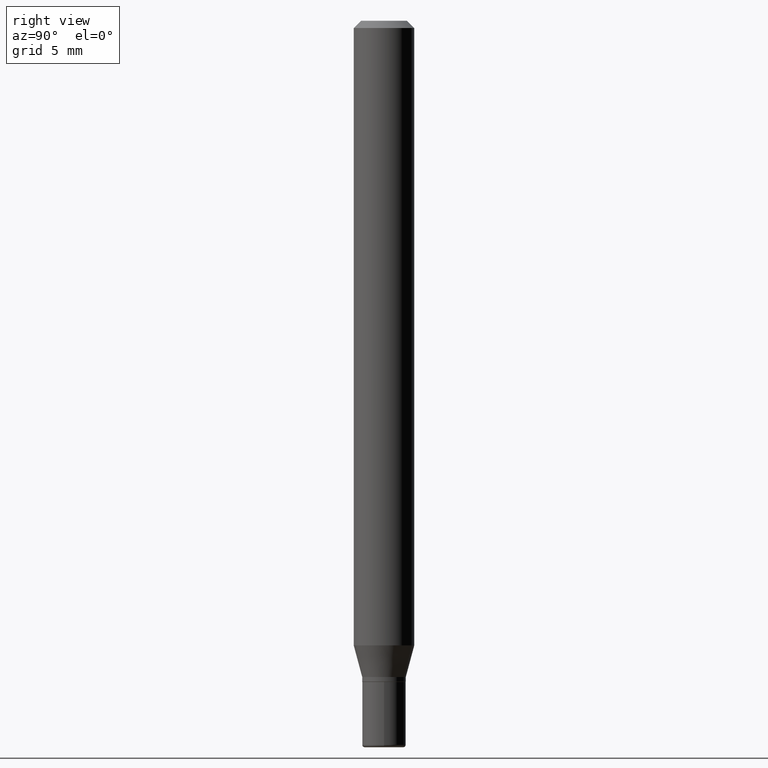
[diagram: clean part render]
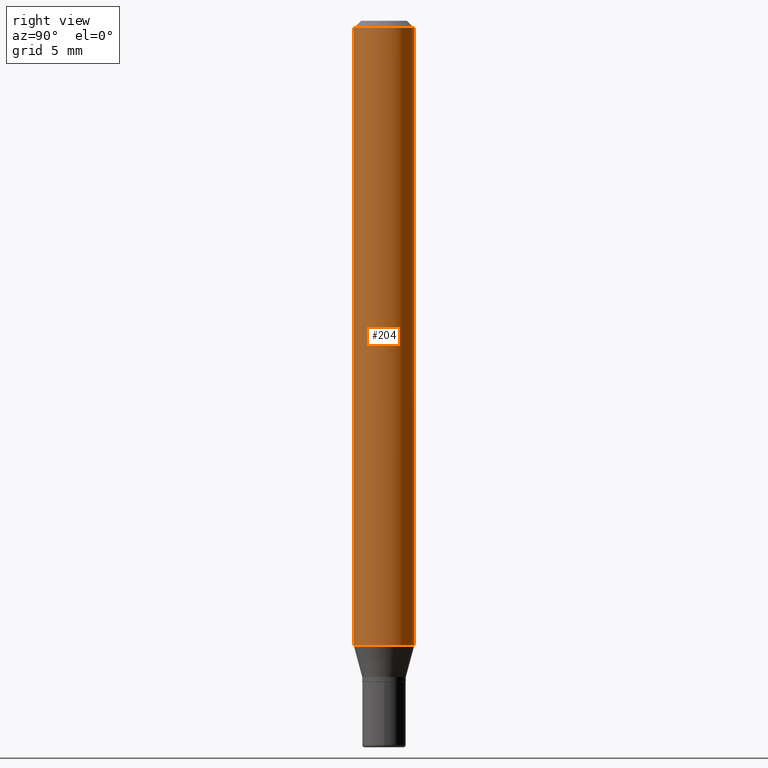
[diagram: same view with one face highlighted and labeled with its STEP entity id]
A machine part, right view. The second image highlights one B-rep face of the part: STEP entity #204.
In plain terms, the highlighted cylindrical surface (edge-blend (fillet) strip) has radius 1.5875 mm, axis along (-0, 0, 1).
Its self-contained STEP definition (entity closure, byte-faithful):
#5 = VECTOR ( 'NONE', #86, 39.37007874015748143 ) ;
#44 = EDGE_CURVE ( 'NONE', #352, #309, #481, .T. ) ;
#82 = AXIS2_PLACEMENT_3D ( 'NONE', #229, #457, #107 ) ;
#86 = DIRECTION ( 'NONE',  ( -2.445401895064721232E-29, 3.491577159375925381E-15, 1.000000000000000000 ) ) ;
#95 = DIRECTION ( 'NONE',  ( -2.445401895064720952E-29, 3.491577159375925381E-15, 1.000000000000000000 ) ) ;
#105 = ORIENTED_EDGE ( 'NONE', *, *, #222, .F. ) ;
#107 = DIRECTION ( 'NONE',  ( -6.982962677686265922E-15, -1.000000000000000000, 4.370956789862821150E-15 ) ) ;
#133 = LINE ( 'NONE', #365, #134 ) ;
#134 = VECTOR ( 'NONE', #288, 39.37007874015748143 ) ;
#142 = DIRECTION ( 'NONE',  ( -2.445401895064720952E-29, 3.491577159375925381E-15, 1.000000000000000000 ) ) ;
#148 = VERTEX_POINT ( 'NONE', #451 ) ;
#150 = EDGE_LOOP ( 'NONE', ( #256, #240, #226, #105 ) ) ;
#204 = ADVANCED_FACE ( 'NONE', ( #213 ), #368, .T. ) ;
#213 = FACE_OUTER_BOUND ( 'NONE', #150, .T. ) ;
#222 = EDGE_CURVE ( 'NONE', #429, #148, #133, .T. ) ;
#226 = ORIENTED_EDGE ( 'NONE', *, *, #409, .F. ) ;
#229 = CARTESIAN_POINT ( 'NONE',  ( 3.153808195759828590E-29, -4.503049042200963587E-15, -1.289689110867544342 ) ) ;
#240 = ORIENTED_EDGE ( 'NONE', *, *, #44, .T. ) ;
#243 = AXIS2_PLACEMENT_3D ( 'NONE', #295, #142, #302 ) ;
#245 = CARTESIAN_POINT ( 'NONE',  ( 4.440892098500625669E-16, 0.06250000000000000000, -2.182235724609953363E-16 ) ) ;
#253 = AXIS2_PLACEMENT_3D ( 'NONE', #370, #95, #260 ) ;
#256 = ORIENTED_EDGE ( 'NONE', *, *, #362, .T. ) ;
#260 = DIRECTION ( 'NONE',  ( -6.982962677686265922E-15, -1.000000000000000000, 3.491577159375925381E-15 ) ) ;
#288 = DIRECTION ( 'NONE',  ( -2.445401895064721232E-29, 3.491577159375925381E-15, 1.000000000000000000 ) ) ;
#295 = CARTESIAN_POINT ( 'NONE',  ( 3.668102842597008945E-31, -5.237365739063784188E-17, -0.01499999999999970281 ) ) ;
#302 = DIRECTION ( 'NONE',  ( -6.982962677686265922E-15, -1.000000000000000000, 3.483106191921935554E-15 ) ) ;
#307 = CARTESIAN_POINT ( 'NONE',  ( 4.440892098500942692E-16, 0.06249999999999995143, -0.01499999999999992138 ) ) ;
#309 = VERTEX_POINT ( 'NONE', #307 ) ;
#348 = CARTESIAN_POINT ( 'NONE',  ( 4.440892098500942692E-16, 0.06249999999999553135, -1.289689110867544564 ) ) ;
#352 = VERTEX_POINT ( 'NONE', #348 ) ;
#353 = CARTESIAN_POINT ( 'NONE',  ( -4.364351673553598685E-16, -0.06250000000000446865, -1.289689110867544120 ) ) ;
#362 = EDGE_CURVE ( 'NONE', #429, #352, #418, .T. ) ;
#365 = CARTESIAN_POINT ( 'NONE',  ( -4.364351673553916201E-16, -0.06250000000000000000, 2.182235724609953363E-16 ) ) ;
#368 = CYLINDRICAL_SURFACE ( 'NONE', #253, 0.06250000000000000000 ) ;
#370 = CARTESIAN_POINT ( 'NONE',  ( 0.000000000000000000, 0.000000000000000000, 0.000000000000000000 ) ) ;
#390 = CIRCLE ( 'NONE', #243, 0.06250000000000000000 ) ;
#409 = EDGE_CURVE ( 'NONE', #148, #309, #390, .T. ) ;
#418 = CIRCLE ( 'NONE', #82, 0.06250000000000000000 ) ;
#429 = VERTEX_POINT ( 'NONE', #353 ) ;
#451 = CARTESIAN_POINT ( 'NONE',  ( -4.364351673553912750E-16, -0.06250000000000005551, -0.01499999999999948597 ) ) ;
#457 = DIRECTION ( 'NONE',  ( -2.445401895064720952E-29, 3.491577159375925381E-15, 1.000000000000000000 ) ) ;
#481 = LINE ( 'NONE', #245, #5 ) ;